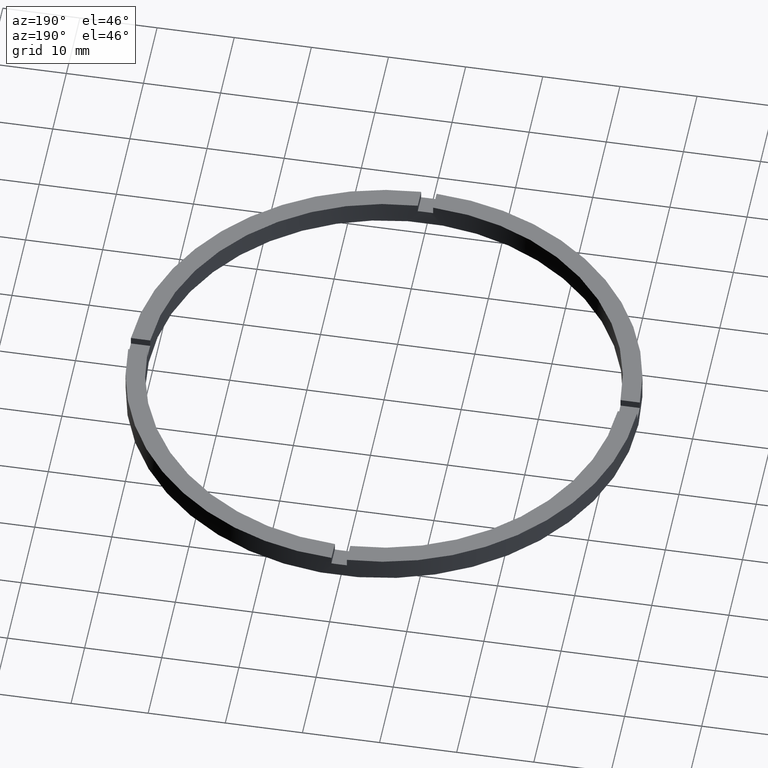
[diagram: clean part render]
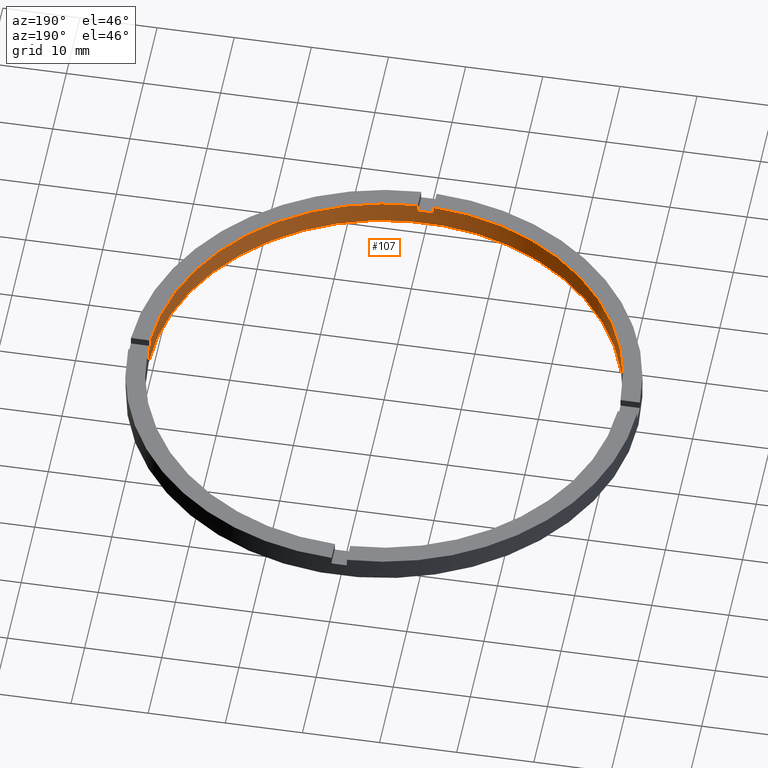
[diagram: same view with one face highlighted and labeled with its STEP entity id]
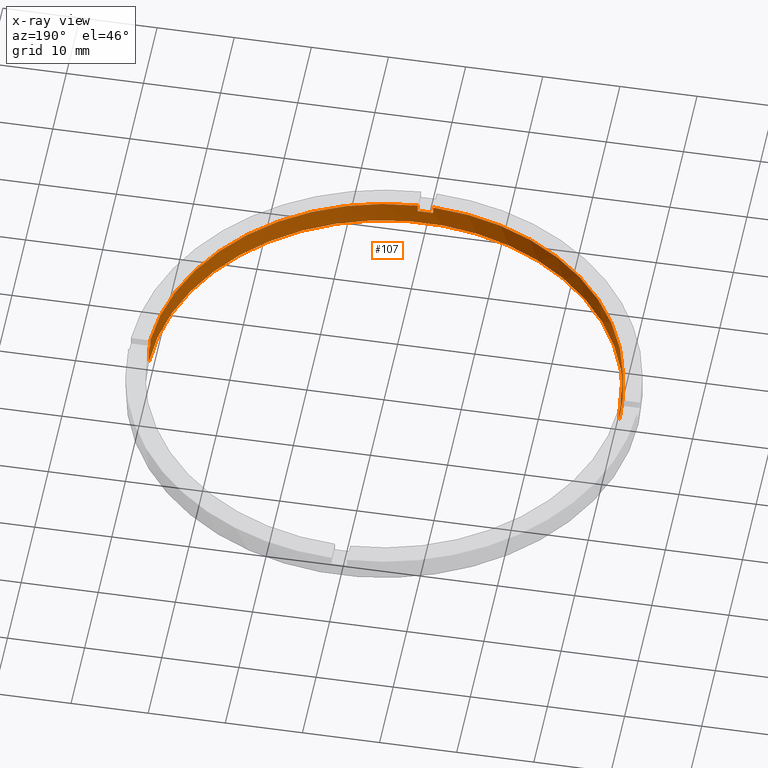
[diagram: x-ray of the same camera — body ghosted, the highlighted face saturated]
A machine part, auxiliary view. The second image highlights one B-rep face of the part: STEP entity #107.
The next image is the same camera in x-ray: the body ghosted, the highlighted face saturated — about 0% of this face is hidden behind the body in this view.
In plain terms, the highlighted cylindrical surface (partial cylindrical patch) has radius 30.5 mm, axis along (-0, -0, -1).
Its self-contained STEP definition (entity closure, byte-faithful):
#10 = CARTESIAN_POINT ( 'NONE',  ( 0.9999999999998386846, -30.48360214935236456, 3.000000000000000000 ) ) ;
#22 = VECTOR ( 'NONE', #705, 1000.000000000000000 ) ;
#33 = VERTEX_POINT ( 'NONE', #570 ) ;
#34 = VECTOR ( 'NONE', #39, 1000.000000000000000 ) ;
#39 = DIRECTION ( 'NONE',  ( -0.000000000000000000, -0.000000000000000000, -1.000000000000000000 ) ) ;
#46 = LINE ( 'NONE', #93, #282 ) ;
#48 = VERTEX_POINT ( 'NONE', #455 ) ;
#50 = VECTOR ( 'NONE', #430, 1000.000000000000000 ) ;
#56 = AXIS2_PLACEMENT_3D ( 'NONE', #214, #513, #416 ) ;
#60 = LINE ( 'NONE', #222, #50 ) ;
#78 = CIRCLE ( 'NONE', #742, 30.50000000000000000 ) ;
#93 = CARTESIAN_POINT ( 'NONE',  ( -1.000000000000161426, -30.48360214935235390, 3.000000000000000000 ) ) ;
#107 = ADVANCED_FACE ( 'NONE', ( #149 ), #671, .F. ) ;
#110 = EDGE_CURVE ( 'NONE', #564, #48, #409, .T. ) ;
#114 = ORIENTED_EDGE ( 'NONE', *, *, #110, .T. ) ;
#115 = VERTEX_POINT ( 'NONE', #535 ) ;
#116 = CARTESIAN_POINT ( 'NONE',  ( -1.000000000000161426, -30.48360214935235390, 2.000000000000000000 ) ) ;
#119 = CARTESIAN_POINT ( 'NONE',  ( 30.50000000000000000, 3.735172737399427541E-15, 2.000000000000000000 ) ) ;
#121 = EDGE_CURVE ( 'NONE', #564, #156, #147, .T. ) ;
#122 = ORIENTED_EDGE ( 'NONE', *, *, #162, .T. ) ;
#123 = DIRECTION ( 'NONE',  ( 1.000000000000000000, 0.000000000000000000, 0.000000000000000000 ) ) ;
#124 = ORIENTED_EDGE ( 'NONE', *, *, #735, .T. ) ;
#129 = ORIENTED_EDGE ( 'NONE', *, *, #121, .F. ) ;
#133 = CARTESIAN_POINT ( 'NONE',  ( 0.9999999999998386846, -30.48360214935236456, 2.000000000000000000 ) ) ;
#147 = LINE ( 'NONE', #475, #677 ) ;
#149 = FACE_OUTER_BOUND ( 'NONE', #389, .T. ) ;
#156 = VERTEX_POINT ( 'NONE', #133 ) ;
#157 = AXIS2_PLACEMENT_3D ( 'NONE', #688, #734, #778 ) ;
#161 = DIRECTION ( 'NONE',  ( 0.000000000000000000, 0.000000000000000000, 1.000000000000000000 ) ) ;
#162 = EDGE_CURVE ( 'NONE', #392, #639, #404, .T. ) ;
#177 = DIRECTION ( 'NONE',  ( 0.000000000000000000, 0.000000000000000000, 1.000000000000000000 ) ) ;
#180 = EDGE_CURVE ( 'NONE', #286, #115, #342, .T. ) ;
#181 = DIRECTION ( 'NONE',  ( 1.000000000000000000, 0.000000000000000000, 0.000000000000000000 ) ) ;
#187 = ORIENTED_EDGE ( 'NONE', *, *, #492, .F. ) ;
#201 = VERTEX_POINT ( 'NONE', #116 ) ;
#214 = CARTESIAN_POINT ( 'NONE',  ( 0.000000000000000000, 0.000000000000000000, 3.000000000000000000 ) ) ;
#217 = EDGE_CURVE ( 'NONE', #397, #33, #326, .T. ) ;
#218 = ORIENTED_EDGE ( 'NONE', *, *, #180, .F. ) ;
#222 = CARTESIAN_POINT ( 'NONE',  ( 30.48360214935235390, -1.000000000000158540, 3.000000000000000000 ) ) ;
#223 = ORIENTED_EDGE ( 'NONE', *, *, #262, .T. ) ;
#234 = EDGE_CURVE ( 'NONE', #115, #749, #620, .T. ) ;
#250 = CARTESIAN_POINT ( 'NONE',  ( 0.000000000000000000, 0.000000000000000000, 3.000000000000000000 ) ) ;
#255 = DIRECTION ( 'NONE',  ( 1.000000000000000000, 0.000000000000000000, 0.000000000000000000 ) ) ;
#261 = DIRECTION ( 'NONE',  ( -0.000000000000000000, -0.000000000000000000, -1.000000000000000000 ) ) ;
#262 = EDGE_CURVE ( 'NONE', #201, #156, #78, .T. ) ;
#271 = CARTESIAN_POINT ( 'NONE',  ( -30.50000000000000000, 0.000000000000000000, 2.000000000000000000 ) ) ;
#282 = VECTOR ( 'NONE', #177, 1000.000000000000000 ) ;
#286 = VERTEX_POINT ( 'NONE', #271 ) ;
#301 = ORIENTED_EDGE ( 'NONE', *, *, #217, .T. ) ;
#302 = AXIS2_PLACEMENT_3D ( 'NONE', #250, #552, #539 ) ;
#305 = ORIENTED_EDGE ( 'NONE', *, *, #704, .F. ) ;
#307 = VERTEX_POINT ( 'NONE', #456 ) ;
#326 = CIRCLE ( 'NONE', #157, 30.50000000000000000 ) ;
#342 = LINE ( 'NONE', #531, #602 ) ;
#347 = CIRCLE ( 'NONE', #494, 30.50000000000000000 ) ;
#348 = DIRECTION ( 'NONE',  ( 1.000000000000000000, 0.000000000000000000, 0.000000000000000000 ) ) ;
#356 = DIRECTION ( 'NONE',  ( 0.000000000000000000, 0.000000000000000000, 1.000000000000000000 ) ) ;
#362 = ORIENTED_EDGE ( 'NONE', *, *, #612, .F. ) ;
#364 = ORIENTED_EDGE ( 'NONE', *, *, #449, .T. ) ;
#389 = EDGE_LOOP ( 'NONE', ( #122, #124, #454, #218, #364, #305, #301, #362, #223, #129, #114, #187 ) ) ;
#392 = VERTEX_POINT ( 'NONE', #697 ) ;
#397 = VERTEX_POINT ( 'NONE', #649 ) ;
#404 = CIRCLE ( 'NONE', #524, 30.50000000000000000 ) ;
#409 = CIRCLE ( 'NONE', #56, 30.50000000000000000 ) ;
#413 = AXIS2_PLACEMENT_3D ( 'NONE', #731, #356, #348 ) ;
#416 = DIRECTION ( 'NONE',  ( 1.000000000000000000, 0.000000000000000000, 0.000000000000000000 ) ) ;
#429 = CARTESIAN_POINT ( 'NONE',  ( 0.000000000000000000, 0.000000000000000000, 2.000000000000000000 ) ) ;
#430 = DIRECTION ( 'NONE',  ( 0.000000000000000000, 0.000000000000000000, 1.000000000000000000 ) ) ;
#449 = EDGE_CURVE ( 'NONE', #286, #307, #347, .T. ) ;
#454 = ORIENTED_EDGE ( 'NONE', *, *, #234, .F. ) ;
#455 = CARTESIAN_POINT ( 'NONE',  ( 30.48360214935235390, -1.000000000000158540, 3.000000000000000000 ) ) ;
#456 = CARTESIAN_POINT ( 'NONE',  ( -30.48360214935236101, -1.000000000000025535, 2.000000000000000000 ) ) ;
#475 = CARTESIAN_POINT ( 'NONE',  ( 0.9999999999998386846, -30.48360214935236456, 3.000000000000000000 ) ) ;
#479 = DIRECTION ( 'NONE',  ( -0.000000000000000000, 0.000000000000000000, 1.000000000000000000 ) ) ;
#492 = EDGE_CURVE ( 'NONE', #392, #48, #60, .T. ) ;
#494 = AXIS2_PLACEMENT_3D ( 'NONE', #518, #161, #255 ) ;
#513 = DIRECTION ( 'NONE',  ( 0.000000000000000000, 0.000000000000000000, 1.000000000000000000 ) ) ;
#518 = CARTESIAN_POINT ( 'NONE',  ( 0.000000000000000000, 0.000000000000000000, 2.000000000000000000 ) ) ;
#524 = AXIS2_PLACEMENT_3D ( 'NONE', #585, #681, #181 ) ;
#531 = CARTESIAN_POINT ( 'NONE',  ( -30.50000000000000000, 0.000000000000000000, 3.000000000000000000 ) ) ;
#535 = CARTESIAN_POINT ( 'NONE',  ( -30.50000000000000000, 0.000000000000000000, 0.000000000000000000 ) ) ;
#539 = DIRECTION ( 'NONE',  ( -1.000000000000000000, 0.000000000000000000, 0.000000000000000000 ) ) ;
#542 = LINE ( 'NONE', #772, #34 ) ;
#545 = CARTESIAN_POINT ( 'NONE',  ( -30.48360214935236101, -1.000000000000025535, 3.000000000000000000 ) ) ;
#552 = DIRECTION ( 'NONE',  ( -0.000000000000000000, -0.000000000000000000, -1.000000000000000000 ) ) ;
#553 = LINE ( 'NONE', #545, #22 ) ;
#558 = DIRECTION ( 'NONE',  ( -0.000000000000000000, -0.000000000000000000, -1.000000000000000000 ) ) ;
#564 = VERTEX_POINT ( 'NONE', #10 ) ;
#570 = CARTESIAN_POINT ( 'NONE',  ( -1.000000000000161426, -30.48360214935235390, 3.000000000000000000 ) ) ;
#585 = CARTESIAN_POINT ( 'NONE',  ( 0.000000000000000000, 0.000000000000000000, 2.000000000000000000 ) ) ;
#600 = CARTESIAN_POINT ( 'NONE',  ( 30.50000000000000000, 3.735172737399427541E-15, 0.000000000000000000 ) ) ;
#602 = VECTOR ( 'NONE', #261, 1000.000000000000000 ) ;
#612 = EDGE_CURVE ( 'NONE', #201, #33, #46, .T. ) ;
#620 = CIRCLE ( 'NONE', #413, 30.50000000000000000 ) ;
#639 = VERTEX_POINT ( 'NONE', #119 ) ;
#649 = CARTESIAN_POINT ( 'NONE',  ( -30.48360214935236101, -1.000000000000025535, 3.000000000000000000 ) ) ;
#671 = CYLINDRICAL_SURFACE ( 'NONE', #302, 30.50000000000000000 ) ;
#677 = VECTOR ( 'NONE', #558, 1000.000000000000000 ) ;
#681 = DIRECTION ( 'NONE',  ( 0.000000000000000000, 0.000000000000000000, 1.000000000000000000 ) ) ;
#688 = CARTESIAN_POINT ( 'NONE',  ( 0.000000000000000000, 0.000000000000000000, 3.000000000000000000 ) ) ;
#697 = CARTESIAN_POINT ( 'NONE',  ( 30.48360214935235390, -1.000000000000158540, 2.000000000000000000 ) ) ;
#704 = EDGE_CURVE ( 'NONE', #397, #307, #553, .T. ) ;
#705 = DIRECTION ( 'NONE',  ( -0.000000000000000000, -0.000000000000000000, -1.000000000000000000 ) ) ;
#731 = CARTESIAN_POINT ( 'NONE',  ( 0.000000000000000000, 0.000000000000000000, 0.000000000000000000 ) ) ;
#734 = DIRECTION ( 'NONE',  ( 0.000000000000000000, 0.000000000000000000, 1.000000000000000000 ) ) ;
#735 = EDGE_CURVE ( 'NONE', #639, #749, #542, .T. ) ;
#742 = AXIS2_PLACEMENT_3D ( 'NONE', #429, #479, #123 ) ;
#749 = VERTEX_POINT ( 'NONE', #600 ) ;
#772 = CARTESIAN_POINT ( 'NONE',  ( 30.50000000000000000, 3.735172737399427541E-15, 3.000000000000000000 ) ) ;
#778 = DIRECTION ( 'NONE',  ( 1.000000000000000000, 0.000000000000000000, 0.000000000000000000 ) ) ;